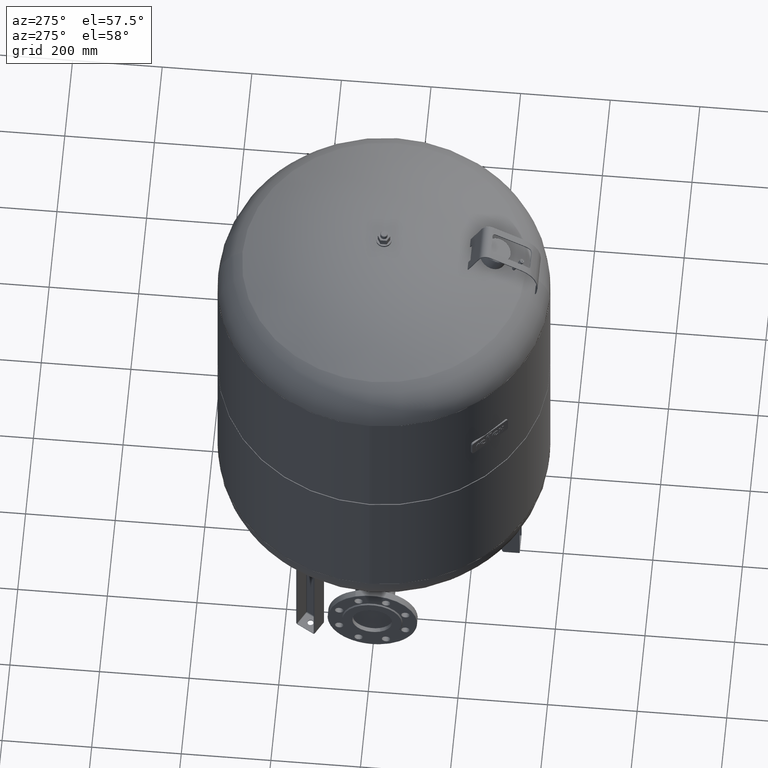
[diagram: clean part render]
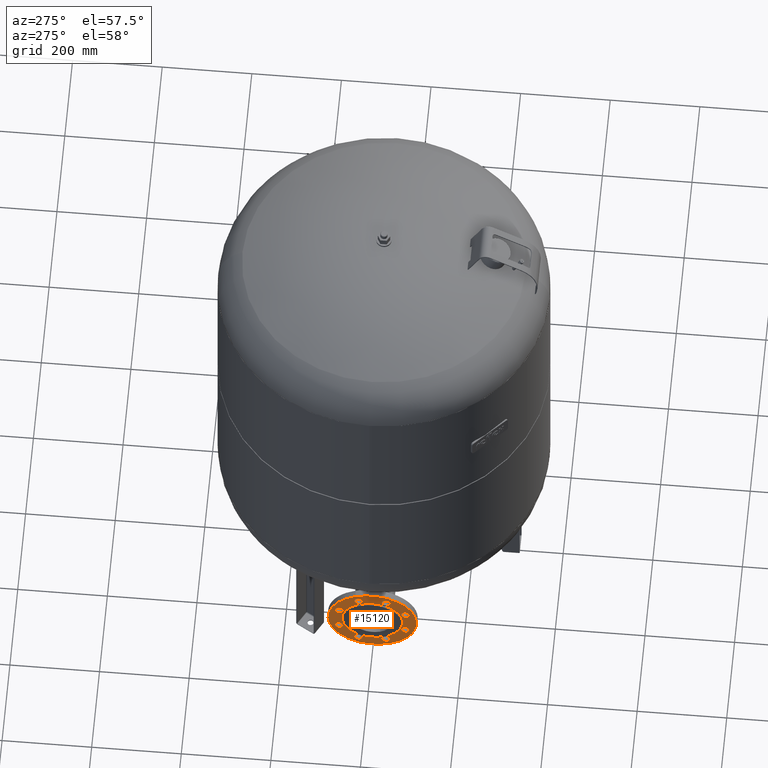
[diagram: same view with one face highlighted and labeled with its STEP entity id]
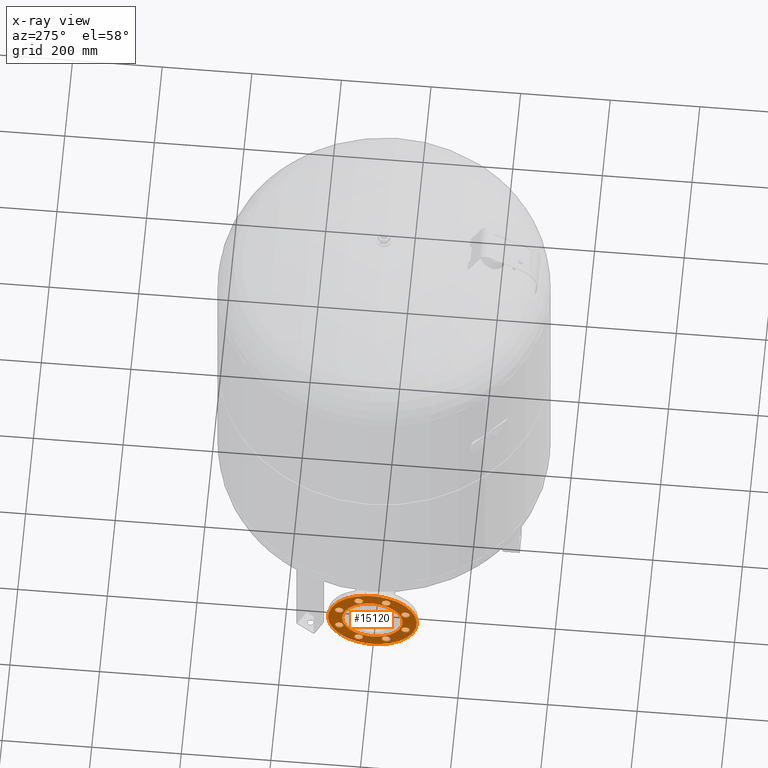
[diagram: x-ray of the same camera — body ghosted, the highlighted face saturated]
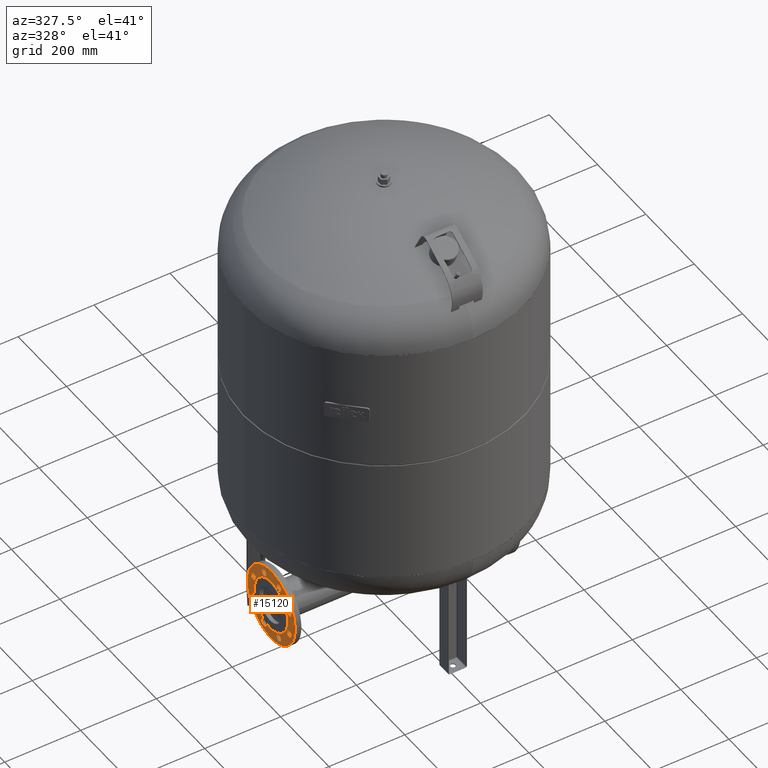
[diagram: same view with one face highlighted and labeled with its STEP entity id]
A machine part, auxiliary view. The second image highlights one B-rep face of the part: STEP entity #15120.
The next image is the same camera in x-ray: the body ghosted, the highlighted face saturated — about 0% of this face is hidden behind the body in this view.
A second angle (auxiliary view) of the same face is appended — the face is thin or edge-on in the first view.
In plain terms, the highlighted face is a freeform B-spline surface patch.
Its self-contained STEP definition (entity closure, byte-faithful):
#13898=CARTESIAN_POINT('',(-297.0,-25.919933684167113,47.423744563872539));
#13899=VERTEX_POINT('',#13898);
#13908=CARTESIAN_POINT('',(-297.0,25.919933684167116,172.576255436127440));
#13909=VERTEX_POINT('',#13908);
#13910=CARTESIAN_POINT('',(-297.0,2.108865E-016,110.0));
#13911=DIRECTION('',(1.0,7.029548E-017,1.697083E-016));
#13912=DIRECTION('',(1.836910E-016,-0.382683432365090,-0.923879532511287));
#13913=AXIS2_PLACEMENT_3D('',#13910,#13911,#13912);
#13914=CIRCLE('',#13913,67.732050807568882);
#13915=EDGE_CURVE('',#13909,#13899,#13914,.T.);
#13963=CARTESIAN_POINT('',(-297.0,-34.250167196675491,175.133507042045720));
#13964=VERTEX_POINT('',#13963);
#13980=CARTESIAN_POINT('',(-297.0,-26.979181981738783,192.687218159760160));
#13981=VERTEX_POINT('',#13980);
#13988=CARTESIAN_POINT('',(-297.0,-30.614674589207137,183.910362600902940));
#13989=DIRECTION('',(-1.000000000000000,-7.029548E-017,-1.697083E-016));
#13990=DIRECTION('',(1.836910E-016,-0.382683432365090,-0.923879532511287));
#13991=AXIS2_PLACEMENT_3D('',#13988,#13989,#13990);
#13992=CIRCLE('',#13991,9.500000000000000);
#13993=EDGE_CURVE('',#13981,#13964,#13992,.T.);
#14026=CARTESIAN_POINT('',(-297.0,-77.545855208371279,131.837819030350000));
#14027=VERTEX_POINT('',#14026);
#14043=CARTESIAN_POINT('',(-297.0,-70.274869993434578,149.391530148064450));
#14044=VERTEX_POINT('',#14043);
#14051=CARTESIAN_POINT('',(-297.0,-73.910362600902928,140.614674589207230));
#14052=DIRECTION('',(-1.000000000000000,-7.029548E-017,-1.697083E-016));
#14053=DIRECTION('',(1.836910E-016,-0.382683432365090,-0.923879532511287));
#14054=AXIS2_PLACEMENT_3D('',#14051,#14052,#14053);
#14055=CIRCLE('',#14054,9.500000000000000);
#14056=EDGE_CURVE('',#14044,#14027,#14055,.T.);
#14089=CARTESIAN_POINT('',(-297.0,-77.545855208371307,70.608469851935624));
#14090=VERTEX_POINT('',#14089);
#14106=CARTESIAN_POINT('',(-297.0,-70.274869993434606,88.162180969650080));
#14107=VERTEX_POINT('',#14106);
#14114=CARTESIAN_POINT('',(-297.0,-73.910362600902957,79.385325410792859));
#14115=DIRECTION('',(-1.000000000000000,-7.029548E-017,-1.697083E-016));
#14116=DIRECTION('',(1.836910E-016,-0.382683432365090,-0.923879532511287));
#14117=AXIS2_PLACEMENT_3D('',#14114,#14115,#14116);
#14118=CIRCLE('',#14117,9.500000000000000);
#14119=EDGE_CURVE('',#14107,#14090,#14118,.T.);
#14152=CARTESIAN_POINT('',(-297.0,-34.250167196675619,27.312781840239865));
#14153=VERTEX_POINT('',#14152);
#14169=CARTESIAN_POINT('',(-297.0,-26.979181981738918,44.866492957954307));
#14170=VERTEX_POINT('',#14169);
#14177=CARTESIAN_POINT('',(-297.0,-30.614674589207269,36.089637399097086));
#14178=DIRECTION('',(-1.000000000000000,-7.029548E-017,-1.697083E-016));
#14179=DIRECTION('',(1.836910E-016,-0.382683432365090,-0.923879532511287));
#14180=AXIS2_PLACEMENT_3D('',#14177,#14178,#14179);
#14181=CIRCLE('',#14180,9.500000000000000);
#14182=EDGE_CURVE('',#14170,#14153,#14181,.T.);
#14215=CARTESIAN_POINT('',(-297.0,26.979181981738751,27.312781840239808));
#14216=VERTEX_POINT('',#14215);
#14232=CARTESIAN_POINT('',(-297.0,34.250167196675456,44.866492957954250));
#14233=VERTEX_POINT('',#14232);
#14240=CARTESIAN_POINT('',(-297.0,30.614674589207102,36.089637399097029));
#14241=DIRECTION('',(-1.000000000000000,-7.029548E-017,-1.697083E-016));
#14242=DIRECTION('',(1.836910E-016,-0.382683432365090,-0.923879532511287));
#14243=AXIS2_PLACEMENT_3D('',#14240,#14241,#14242);
#14244=CIRCLE('',#14243,9.500000000000000);
#14245=EDGE_CURVE('',#14233,#14216,#14244,.T.);
#14278=CARTESIAN_POINT('',(-297.0,70.274869993434592,70.608469851935581));
#14279=VERTEX_POINT('',#14278);
#14295=CARTESIAN_POINT('',(-297.0,77.545855208371293,88.162180969650038));
#14296=VERTEX_POINT('',#14295);
#14303=CARTESIAN_POINT('',(-297.0,73.910362600902943,79.385325410792817));
#14304=DIRECTION('',(-1.000000000000000,-7.029548E-017,-1.697083E-016));
#14305=DIRECTION('',(1.836910E-016,-0.382683432365090,-0.923879532511287));
#14306=AXIS2_PLACEMENT_3D('',#14303,#14304,#14305);
#14307=CIRCLE('',#14306,9.500000000000000);
#14308=EDGE_CURVE('',#14296,#14279,#14307,.T.);
#14341=CARTESIAN_POINT('',(-297.0,70.274869993434592,131.837819030349950));
#14342=VERTEX_POINT('',#14341);
#14358=CARTESIAN_POINT('',(-297.0,77.545855208371293,149.391530148064390));
#14359=VERTEX_POINT('',#14358);
#14366=CARTESIAN_POINT('',(-297.0,73.910362600902943,140.614674589207170));
#14367=DIRECTION('',(-1.000000000000000,-7.029548E-017,-1.697083E-016));
#14368=DIRECTION('',(1.836910E-016,-0.382683432365090,-0.923879532511287));
#14369=AXIS2_PLACEMENT_3D('',#14366,#14367,#14368);
#14370=CIRCLE('',#14369,9.500000000000000);
#14371=EDGE_CURVE('',#14359,#14342,#14370,.T.);
#14404=CARTESIAN_POINT('',(-297.0,26.979181981738854,175.133507042045720));
#14405=VERTEX_POINT('',#14404);
#14421=CARTESIAN_POINT('',(-297.0,34.250167196675562,192.687218159760160));
#14422=VERTEX_POINT('',#14421);
#14429=CARTESIAN_POINT('',(-297.0,30.614674589207208,183.910362600902940));
#14430=DIRECTION('',(-1.000000000000000,-7.029548E-017,-1.697083E-016));
#14431=DIRECTION('',(1.836910E-016,-0.382683432365090,-0.923879532511287));
#14432=AXIS2_PLACEMENT_3D('',#14429,#14430,#14431);
#14433=CIRCLE('',#14432,9.500000000000000);
#14434=EDGE_CURVE('',#14422,#14405,#14433,.T.);
#14557=CARTESIAN_POINT('',(-297.0,37.885659804143884,201.464073718617390));
#14558=VERTEX_POINT('',#14557);
#14575=CARTESIAN_POINT('',(-297.0,-37.885659804143891,18.535926281382615));
#14576=VERTEX_POINT('',#14575);
#14584=CARTESIAN_POINT('',(-297.0,2.108865E-016,110.0));
#14585=DIRECTION('',(-1.0,-7.029548E-017,-1.697083E-016));
#14586=DIRECTION('',(-1.836910E-016,0.382683432365096,0.923879532511284));
#14587=AXIS2_PLACEMENT_3D('',#14584,#14585,#14586);
#14588=CIRCLE('',#14587,98.999999999999986);
#14589=EDGE_CURVE('',#14558,#14576,#14588,.T.);
#15009=CARTESIAN_POINT('',(-297.0,2.108865E-016,110.0));
#15010=DIRECTION('',(-1.0,-7.029548E-017,-1.697083E-016));
#15011=DIRECTION('',(-1.836910E-016,0.382683432365096,0.923879532511284));
#15012=AXIS2_PLACEMENT_3D('',#15009,#15010,#15011);
#15013=CIRCLE('',#15012,98.999999999999986);
#15014=EDGE_CURVE('',#14576,#14558,#15013,.T.);
#15021=CARTESIAN_POINT('',(-297.000000000000060,169.003571337468200,180.003571337468200));
#15022=CARTESIAN_POINT('',(-297.0,70.003571337468188,-59.003571337468230));
#15023=CARTESIAN_POINT('',(-297.000000000000060,-70.003571337468173,279.003571337468200));
#15024=CARTESIAN_POINT('',(-296.999999999999940,-169.003571337468200,39.996428662531770));
#15025=B_SPLINE_SURFACE_WITH_KNOTS('',1,1,((#15021,#15023),(#15022,#15024)),.UNSPECIFIED.,.F.,.F.,.U.,(2,2),(2,2),(0.0,258.699467045522570),(0.0,258.699467045522510),.UNSPECIFIED.);
#15026=ORIENTED_EDGE('',*,*,#15014,.T.);
#15027=ORIENTED_EDGE('',*,*,#14589,.T.);
#15028=EDGE_LOOP('',(#15026,#15027));
#15029=FACE_OUTER_BOUND('',#15028,.T.);
#15030=CARTESIAN_POINT('',(-297.0,2.108865E-016,110.0));
#15031=DIRECTION('',(1.0,7.029548E-017,1.697083E-016));
#15032=DIRECTION('',(1.836910E-016,-0.382683432365090,-0.923879532511287));
#15033=AXIS2_PLACEMENT_3D('',#15030,#15031,#15032);
#15034=CIRCLE('',#15033,67.732050807568882);
#15035=EDGE_CURVE('',#13899,#13909,#15034,.T.);
#15036=ORIENTED_EDGE('',*,*,#15035,.T.);
#15037=ORIENTED_EDGE('',*,*,#13915,.T.);
#15038=EDGE_LOOP('',(#15036,#15037));
#15039=FACE_BOUND('',#15038,.T.);
#15040=CARTESIAN_POINT('',(-297.0,-30.614674589207137,183.910362600902940));
#15041=DIRECTION('',(-1.000000000000000,-7.029548E-017,-1.697083E-016));
#15042=DIRECTION('',(1.836910E-016,-0.382683432365090,-0.923879532511287));
#15043=AXIS2_PLACEMENT_3D('',#15040,#15041,#15042);
#15044=CIRCLE('',#15043,9.500000000000000);
#15045=EDGE_CURVE('',#13964,#13981,#15044,.T.);
#15046=ORIENTED_EDGE('',*,*,#15045,.F.);
#15047=ORIENTED_EDGE('',*,*,#13993,.F.);
#15048=EDGE_LOOP('',(#15046,#15047));
#15049=FACE_BOUND('',#15048,.T.);
#15050=CARTESIAN_POINT('',(-297.0,-73.910362600902928,140.614674589207230));
#15051=DIRECTION('',(-1.000000000000000,-7.029548E-017,-1.697083E-016));
#15052=DIRECTION('',(1.836910E-016,-0.382683432365090,-0.923879532511287));
#15053=AXIS2_PLACEMENT_3D('',#15050,#15051,#15052);
#15054=CIRCLE('',#15053,9.500000000000000);
#15055=EDGE_CURVE('',#14027,#14044,#15054,.T.);
#15056=ORIENTED_EDGE('',*,*,#15055,.F.);
#15057=ORIENTED_EDGE('',*,*,#14056,.F.);
#15058=EDGE_LOOP('',(#15056,#15057));
#15059=FACE_BOUND('',#15058,.T.);
#15060=CARTESIAN_POINT('',(-297.0,-73.910362600902957,79.385325410792859));
#15061=DIRECTION('',(-1.000000000000000,-7.029548E-017,-1.697083E-016));
#15062=DIRECTION('',(1.836910E-016,-0.382683432365090,-0.923879532511287));
#15063=AXIS2_PLACEMENT_3D('',#15060,#15061,#15062);
#15064=CIRCLE('',#15063,9.500000000000000);
#15065=EDGE_CURVE('',#14090,#14107,#15064,.T.);
#15066=ORIENTED_EDGE('',*,*,#15065,.F.);
#15067=ORIENTED_EDGE('',*,*,#14119,.F.);
#15068=EDGE_LOOP('',(#15066,#15067));
#15069=FACE_BOUND('',#15068,.T.);
#15070=CARTESIAN_POINT('',(-297.0,-30.614674589207269,36.089637399097086));
#15071=DIRECTION('',(-1.000000000000000,-7.029548E-017,-1.697083E-016));
#15072=DIRECTION('',(1.836910E-016,-0.382683432365090,-0.923879532511287));
#15073=AXIS2_PLACEMENT_3D('',#15070,#15071,#15072);
#15074=CIRCLE('',#15073,9.500000000000000);
#15075=EDGE_CURVE('',#14153,#14170,#15074,.T.);
#15076=ORIENTED_EDGE('',*,*,#15075,.F.);
#15077=ORIENTED_EDGE('',*,*,#14182,.F.);
#15078=EDGE_LOOP('',(#15076,#15077));
#15079=FACE_BOUND('',#15078,.T.);
#15080=CARTESIAN_POINT('',(-297.0,30.614674589207102,36.089637399097029));
#15081=DIRECTION('',(-1.000000000000000,-7.029548E-017,-1.697083E-016));
#15082=DIRECTION('',(1.836910E-016,-0.382683432365090,-0.923879532511287));
#15083=AXIS2_PLACEMENT_3D('',#15080,#15081,#15082);
#15084=CIRCLE('',#15083,9.500000000000000);
#15085=EDGE_CURVE('',#14216,#14233,#15084,.T.);
#15086=ORIENTED_EDGE('',*,*,#15085,.F.);
#15087=ORIENTED_EDGE('',*,*,#14245,.F.);
#15088=EDGE_LOOP('',(#15086,#15087));
#15089=FACE_BOUND('',#15088,.T.);
#15090=CARTESIAN_POINT('',(-297.0,73.910362600902943,79.385325410792817));
#15091=DIRECTION('',(-1.000000000000000,-7.029548E-017,-1.697083E-016));
#15092=DIRECTION('',(1.836910E-016,-0.382683432365090,-0.923879532511287));
#15093=AXIS2_PLACEMENT_3D('',#15090,#15091,#15092);
#15094=CIRCLE('',#15093,9.500000000000000);
#15095=EDGE_CURVE('',#14279,#14296,#15094,.T.);
#15096=ORIENTED_EDGE('',*,*,#15095,.F.);
#15097=ORIENTED_EDGE('',*,*,#14308,.F.);
#15098=EDGE_LOOP('',(#15096,#15097));
#15099=FACE_BOUND('',#15098,.T.);
#15100=CARTESIAN_POINT('',(-297.0,73.910362600902943,140.614674589207170));
#15101=DIRECTION('',(-1.000000000000000,-7.029548E-017,-1.697083E-016));
#15102=DIRECTION('',(1.836910E-016,-0.382683432365090,-0.923879532511287));
#15103=AXIS2_PLACEMENT_3D('',#15100,#15101,#15102);
#15104=CIRCLE('',#15103,9.500000000000000);
#15105=EDGE_CURVE('',#14342,#14359,#15104,.T.);
#15106=ORIENTED_EDGE('',*,*,#15105,.F.);
#15107=ORIENTED_EDGE('',*,*,#14371,.F.);
#15108=EDGE_LOOP('',(#15106,#15107));
#15109=FACE_BOUND('',#15108,.T.);
#15110=CARTESIAN_POINT('',(-297.0,30.614674589207208,183.910362600902940));
#15111=DIRECTION('',(-1.000000000000000,-7.029548E-017,-1.697083E-016));
#15112=DIRECTION('',(1.836910E-016,-0.382683432365090,-0.923879532511287));
#15113=AXIS2_PLACEMENT_3D('',#15110,#15111,#15112);
#15114=CIRCLE('',#15113,9.500000000000000);
#15115=EDGE_CURVE('',#14405,#14422,#15114,.T.);
#15116=ORIENTED_EDGE('',*,*,#15115,.F.);
#15117=ORIENTED_EDGE('',*,*,#14434,.F.);
#15118=EDGE_LOOP('',(#15116,#15117));
#15119=FACE_BOUND('',#15118,.T.);
#15120=ADVANCED_FACE('',(#15029,#15039,#15049,#15059,#15069,#15079,#15089,#15099,#15109,#15119),#15025,.T.);